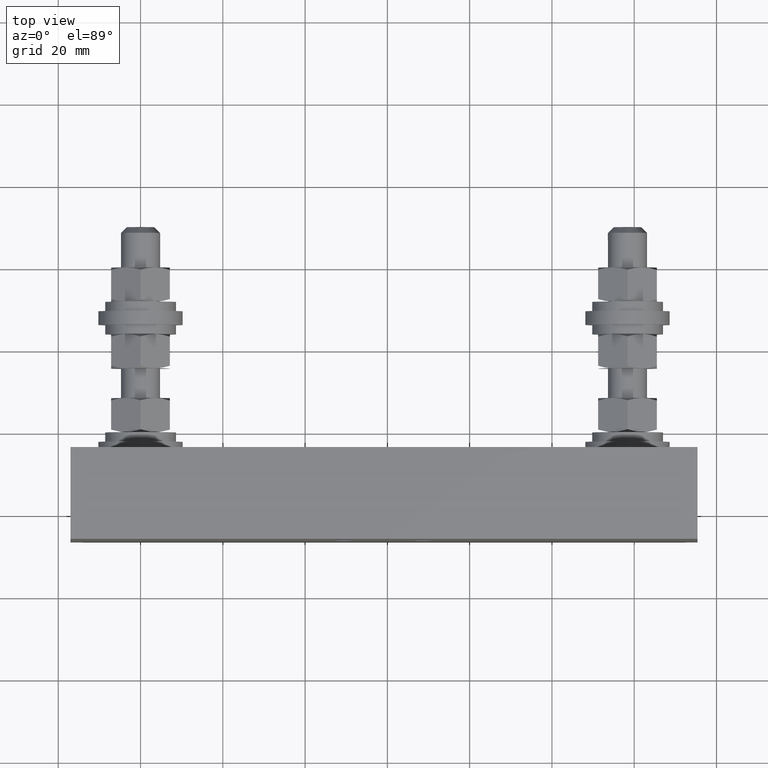
[diagram: clean part render]
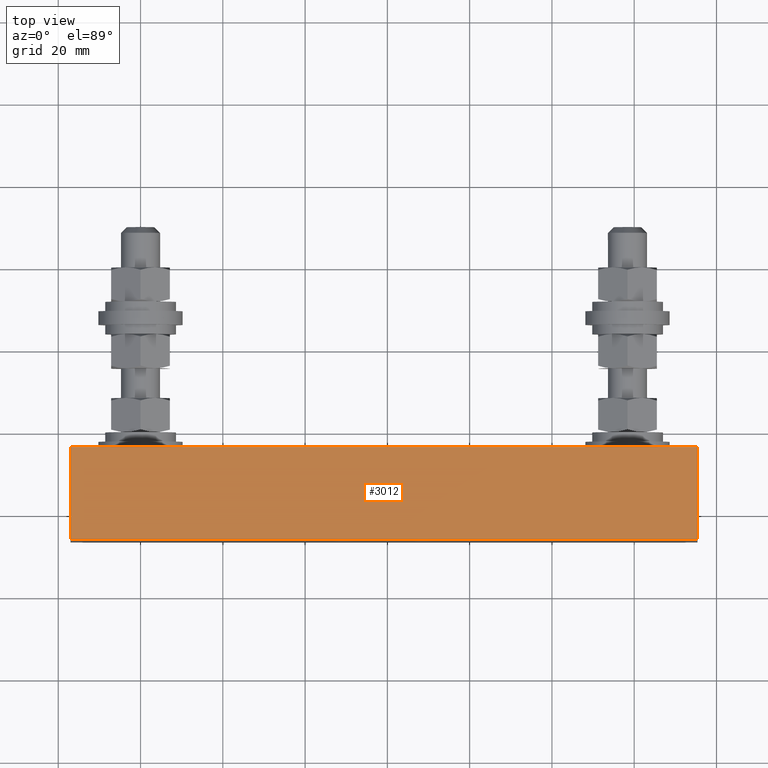
[diagram: same view with one face highlighted and labeled with its STEP entity id]
A machine part, top view. The second image highlights one B-rep face of the part: STEP entity #3012.
In plain terms, the highlighted planar face has unit normal (0, 0, -1).
Its self-contained STEP definition (entity closure, byte-faithful):
#461 = ORIENTED_EDGE ( 'NONE', *, *, #4495, .T. ) ;
#708 = PLANE ( 'NONE',  #3597 ) ;
#795 = VECTOR ( 'NONE', #2240, 39.37007874015748100 ) ;
#1648 = CARTESIAN_POINT ( 'NONE',  ( -0.6700000000000002600, -1.733125000000000000, 1.000000000000000000 ) ) ;
#1833 = LINE ( 'NONE', #2765, #6442 ) ;
#1864 = CARTESIAN_POINT ( 'NONE',  ( 5.330000000000000100, -1.733125000000000000, 1.000000000000000000 ) ) ;
#1933 = DIRECTION ( 'NONE',  ( 0.0000000000000000000, 0.0000000000000000000, -1.000000000000000000 ) ) ;
#1983 = VERTEX_POINT ( 'NONE', #1864 ) ;
#2140 = LINE ( 'NONE', #6560, #3521 ) ;
#2240 = DIRECTION ( 'NONE',  ( 1.000000000000000000, 0.0000000000000000000, 0.0000000000000000000 ) ) ;
#2455 = CARTESIAN_POINT ( 'NONE',  ( -0.6700000000000002600, -1.733125000000000000, 1.000000000000000000 ) ) ;
#2667 = ORIENTED_EDGE ( 'NONE', *, *, #6003, .T. ) ;
#2765 = CARTESIAN_POINT ( 'NONE',  ( 5.330000000000000100, -2.613125000000000100, 1.000000000000000000 ) ) ;
#2987 = DIRECTION ( 'NONE',  ( -0.0000000000000000000, -1.000000000000000000, -0.0000000000000000000 ) ) ;
#3012 = ADVANCED_FACE ( 'NONE', ( #6186 ), #708, .F. ) ;
#3521 = VECTOR ( 'NONE', #2987, 39.37007874015748100 ) ;
#3597 = AXIS2_PLACEMENT_3D ( 'NONE', #5529, #1933, #6152 ) ;
#3923 = EDGE_LOOP ( 'NONE', ( #7505, #7202, #461, #2667 ) ) ;
#4308 = EDGE_CURVE ( 'NONE', #1983, #5609, #4660, .T. ) ;
#4495 = EDGE_CURVE ( 'NONE', #5609, #5134, #2140, .T. ) ;
#4660 = LINE ( 'NONE', #1648, #7662 ) ;
#5134 = VERTEX_POINT ( 'NONE', #6743 ) ;
#5529 = CARTESIAN_POINT ( 'NONE',  ( 2.329999999999998700, -2.173125000000000200, 1.000000000000000000 ) ) ;
#5609 = VERTEX_POINT ( 'NONE', #2455 ) ;
#5833 = CARTESIAN_POINT ( 'NONE',  ( -0.6700000000000002600, -2.613125000000000100, 1.000000000000000000 ) ) ;
#6003 = EDGE_CURVE ( 'NONE', #5134, #6074, #7170, .T. ) ;
#6074 = VERTEX_POINT ( 'NONE', #7085 ) ;
#6152 = DIRECTION ( 'NONE',  ( -1.000000000000000000, 0.0000000000000000000, -0.0000000000000000000 ) ) ;
#6186 = FACE_OUTER_BOUND ( 'NONE', #3923, .T. ) ;
#6442 = VECTOR ( 'NONE', #6947, 39.37007874015748100 ) ;
#6560 = CARTESIAN_POINT ( 'NONE',  ( -0.6700000000000002600, -2.613125000000000100, 1.000000000000000000 ) ) ;
#6743 = CARTESIAN_POINT ( 'NONE',  ( -0.6700000000000002600, -2.613125000000000100, 1.000000000000000000 ) ) ;
#6947 = DIRECTION ( 'NONE',  ( 0.0000000000000000000, 1.000000000000000000, 0.0000000000000000000 ) ) ;
#7043 = DIRECTION ( 'NONE',  ( -1.000000000000000000, -0.0000000000000000000, -0.0000000000000000000 ) ) ;
#7085 = CARTESIAN_POINT ( 'NONE',  ( 5.330000000000000100, -2.613125000000000100, 1.000000000000000000 ) ) ;
#7119 = EDGE_CURVE ( 'NONE', #6074, #1983, #1833, .T. ) ;
#7170 = LINE ( 'NONE', #5833, #795 ) ;
#7202 = ORIENTED_EDGE ( 'NONE', *, *, #4308, .T. ) ;
#7505 = ORIENTED_EDGE ( 'NONE', *, *, #7119, .T. ) ;
#7662 = VECTOR ( 'NONE', #7043, 39.37007874015748100 ) ;